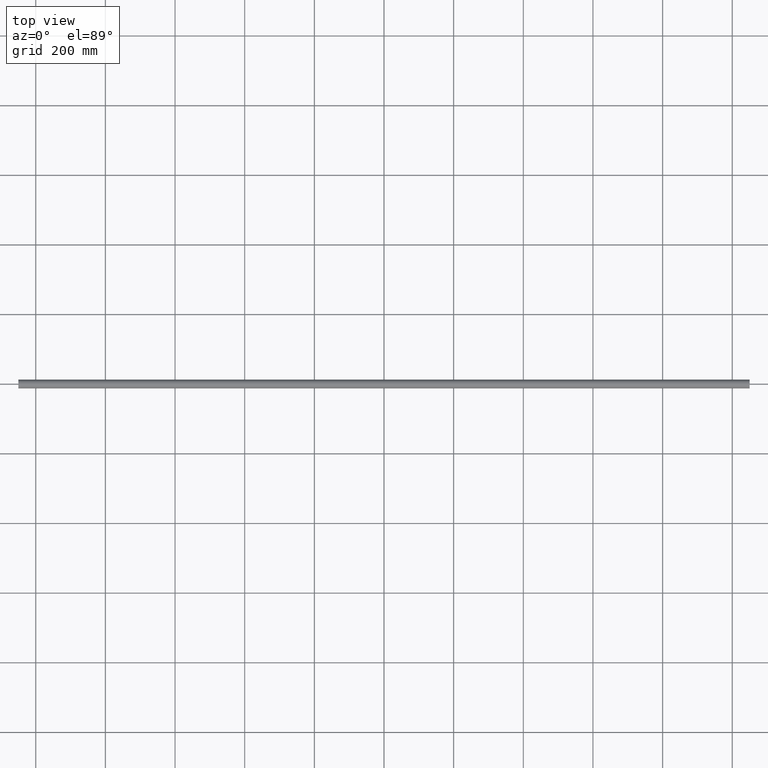
[diagram: clean part render]
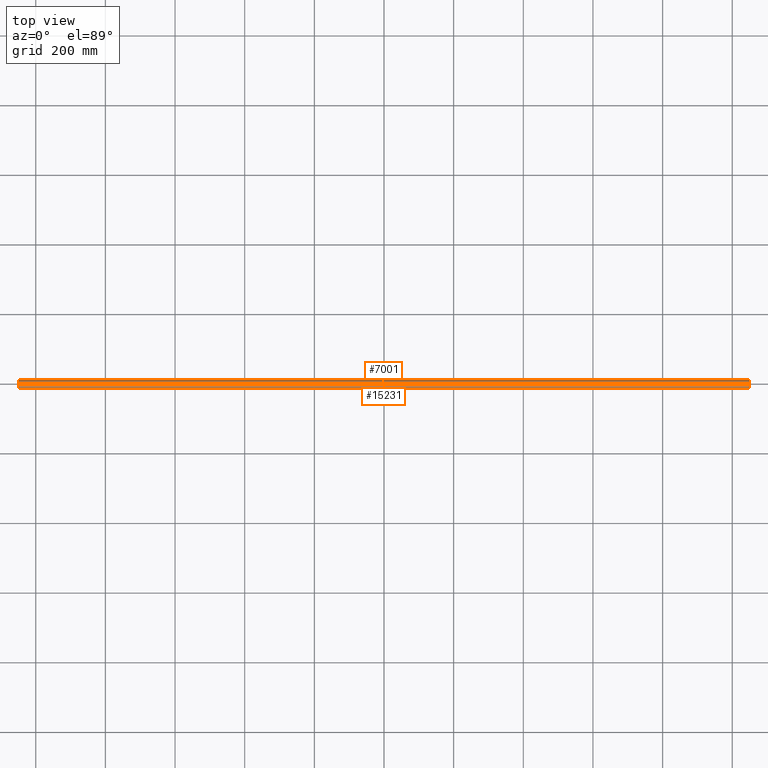
[diagram: same view with one multi-face feature highlighted, each face labeled with its STEP entity id]
A machine part, top view. The highlighted faces form ONE feature: a constant-radius fillet chain: 2 tangent blend faces with common blend radius 12.5 mm. The faces share edges in the B-rep.
Their STEP definitions:
[1] entity #15231 (Cylinder):
#34 = CARTESIAN_POINT ( 'NONE',  ( 1050.000000000000000, 0.0000000000000000000, 12.50000000000000000 ) ) ;
#101 = CARTESIAN_POINT ( 'NONE',  ( -882.5594400543211600, -2.248989797497585200, -12.29704468854005500 ) ) ;
#116 = CARTESIAN_POINT ( 'NONE',  ( 3.399999999999992400, 1.530817148184698900E-015, -12.50000000000000000 ) ) ;
#178 = CARTESIAN_POINT ( 'NONE',  ( 876.6000000000000200, -0.2257922536966988400, -12.50000000000000000 ) ) ;
#238 = CARTESIAN_POINT ( 'NONE',  ( 881.7169160836190300, -2.968529363370429100, -12.14369076542070200 ) ) ;
#287 = CARTESIAN_POINT ( 'NONE',  ( 882.0904125409246000, -2.718083123427828900, -12.20511272832640700 ) ) ;
#327 = ORIENTED_EDGE ( 'NONE', *, *, #12410, .T. ) ;
#335 = CARTESIAN_POINT ( 'NONE',  ( 877.0508764755737700, -1.706430297025199700, -12.38438124661081300 ) ) ;
#649 = ORIENTED_EDGE ( 'NONE', *, *, #9983, .T. ) ;
#767 = ORIENTED_EDGE ( 'NONE', *, *, #7439, .F. ) ;
#923 = CARTESIAN_POINT ( 'NONE',  ( -883.0536700109803400, -1.511526726006549000, -12.40999792042050500 ) ) ;
#1092 = CARTESIAN_POINT ( 'NONE',  ( -3.290681121150606200, -0.8836557597777408000, -12.47063843226399100 ) ) ;
#1206 = CARTESIAN_POINT ( 'NONE',  ( -3.377732997452065800, -0.4476042234037471700, -12.49389134214153300 ) ) ;
#1293 = CARTESIAN_POINT ( 'NONE',  ( 1050.000000000000000, 1.530808498934191500E-015, -12.50000000000000000 ) ) ;
#1363 = CARTESIAN_POINT ( 'NONE',  ( 2.562011329120410100, -2.246229744202106200, -12.29756642919713400 ) ) ;
#1376 = CARTESIAN_POINT ( 'NONE',  ( 876.6222670025480300, -0.4476042234037525000, -12.49389134214153400 ) ) ;
#1421 = CARTESIAN_POINT ( 'NONE',  ( 883.4000000000003200, -0.2225510969395918800, -12.50000000000000400 ) ) ;
#1471 = CARTESIAN_POINT ( 'NONE',  ( 876.6000000000000200, 1.240253457150525300E-014, -12.50000000000000000 ) ) ;
#1550 = CARTESIAN_POINT ( 'NONE',  ( -876.6000000000003600, -0.2225510969395918800, -12.50000000000000400 ) ) ;
#1759 = CARTESIAN_POINT ( 'NONE',  ( -877.4379886708796900, -2.246229744202055100, -12.29756642919714700 ) ) ;
#1930 = CARTESIAN_POINT ( 'NONE',  ( -883.3777329974522000, -0.4476042234037525000, -12.49389134214153400 ) ) ;
#2322 = CARTESIAN_POINT ( 'NONE',  ( -1050.000000000000000, 0.0000000000000000000, 0.0000000000000000000 ) ) ;
#2341 = ORIENTED_EDGE ( 'NONE', *, *, #11870, .T. ) ;
#2469 = CARTESIAN_POINT ( 'NONE',  ( 1050.000000000000000, 1.530808498934191500E-015, -12.50000000000000000 ) ) ;
#2550 = VERTEX_POINT ( 'NONE', #13481 ) ;
#2588 = CARTESIAN_POINT ( 'NONE',  ( 880.2214708092436700, -3.400096623084107900, -12.02868833097945100 ) ) ;
#2609 = CARTESIAN_POINT ( 'NONE',  ( -881.5092891430321100, -3.054671048340733600, -12.12133177702797600 ) ) ;
#3134 = CARTESIAN_POINT ( 'NONE',  ( -883.2906811211505600, -0.8836557597777396900, -12.47063843226399100 ) ) ;
#3151 = LINE ( 'NONE', #34, #8893 ) ;
#3343 = CARTESIAN_POINT ( 'NONE',  ( 1050.000000000000000, 1.530808498934191500E-015, -12.50000000000000000 ) ) ;
#3511 = CARTESIAN_POINT ( 'NONE',  ( -883.3999999999999800, 1.240253457150525300E-014, -12.50000000000000000 ) ) ;
#3524 = DIRECTION ( 'NONE',  ( 0.0000000000000000000, 0.0000000000000000000, -1.000000000000000000 ) ) ;
#3560 = CARTESIAN_POINT ( 'NONE',  ( 1050.000000000000000, 1.530808498934191500E-015, -12.50000000000000000 ) ) ;
#3657 = CARTESIAN_POINT ( 'NONE',  ( 876.6000000000000200, 1.240253457150525300E-014, -12.50000000000000000 ) ) ;
#3793 = CARTESIAN_POINT ( 'NONE',  ( 877.9232214464242400, -2.701278004671885800, -12.20530089315861700 ) ) ;
#3801 = ORIENTED_EDGE ( 'NONE', *, *, #11406, .T. ) ;
#3812 = DIRECTION ( 'NONE',  ( -1.000000000000000000, -0.0000000000000000000, -0.0000000000000000000 ) ) ;
#3845 = CARTESIAN_POINT ( 'NONE',  ( 879.1148156455342400, -3.290386587176775000, -12.05924650855003800 ) ) ;
#3897 = CARTESIAN_POINT ( 'NONE',  ( 880.8849586188829300, -3.290362799234757900, -12.05925230465093800 ) ) ;
#3913 = CARTESIAN_POINT ( 'NONE',  ( -880.4457652610848300, -3.378089484675303100, -12.03497327294810600 ) ) ;
#4066 = CARTESIAN_POINT ( 'NONE',  ( -880.2244276377460900, -3.399902734060280500, -12.02874313505274300 ) ) ;
#4125 = VECTOR ( 'NONE', #12533, 1000.000000000000000 ) ;
#4302 = LINE ( 'NONE', #3343, #7087 ) ;
#4330 = CARTESIAN_POINT ( 'NONE',  ( -883.2247705063503000, -1.100213052444112500, -12.45320411249671000 ) ) ;
#4564 = CARTESIAN_POINT ( 'NONE',  ( 0.2214708092432787200, -3.400096623084137600, -12.02868833097944000 ) ) ;
#4702 = VERTEX_POINT ( 'NONE', #8084 ) ;
#4716 = CARTESIAN_POINT ( 'NONE',  ( -0.8851843544657870300, -3.290386587176843000, -12.05924650855002200 ) ) ;
#4865 = CARTESIAN_POINT ( 'NONE',  ( 2.090412540924484000, -2.718083123427878200, -12.20511272832639600 ) ) ;
#4989 = CARTESIAN_POINT ( 'NONE',  ( 882.5620113291205400, -2.246229744202055100, -12.29756642919714700 ) ) ;
#5038 = CARTESIAN_POINT ( 'NONE',  ( 878.8993935230678300, -3.224536294380859800, -12.07725403179795100 ) ) ;
#5101 = CARTESIAN_POINT ( 'NONE',  ( 876.7752294936501600, -1.100213052444112500, -12.45320411249671000 ) ) ;
#5126 = DIRECTION ( 'NONE',  ( 1.000000000000000000, 0.0000000000000000000, 0.0000000000000000000 ) ) ;
#5265 = CARTESIAN_POINT ( 'NONE',  ( -878.9025609335545800, -3.225774224939495800, -12.07692960344454400 ) ) ;
#5364 = CARTESIAN_POINT ( 'NONE',  ( -876.7100539408758100, -0.8867016201782437200, -12.47044329820943200 ) ) ;
#5742 = CARTESIAN_POINT ( 'NONE',  ( 0.8849586188828737500, -3.290362799234787700, -12.05925230465092600 ) ) ;
#5834 = CYLINDRICAL_SURFACE ( 'NONE', #11644, 12.50000000000000000 ) ;
#5903 = CARTESIAN_POINT ( 'NONE',  ( -0.2244276377459091800, -3.399902734060317000, -12.02874313505273600 ) ) ;
#6162 = CIRCLE ( 'NONE', #14709, 12.50000000000000000 ) ;
#6209 = CARTESIAN_POINT ( 'NONE',  ( 3.377728582763545300, -0.4482571319650705500, -12.49388896063694400 ) ) ;
#6222 = B_SPLINE_CURVE_WITH_KNOTS ( 'NONE', 3,
 ( #11858, #14160, #1206, #1092, #15247, #8123, #8228, #15456, #8329, #10455, #9419, #10616, #11806, #11651, #4716, #13005, #5903, #4564, #12846, #5742, #14057, #6937, #4865, #1363, #13114, #14523, #12050, #14469, #10826, #6209, #14414, #116 ),
 .UNSPECIFIED., .F., .F.,
 ( 4, 2, 2, 2, 2, 2, 2, 2, 2, 2, 2, 2, 2, 2, 2, 4 ),
 ( 1.010852188292129100E-019, 0.0006675304755107761000, 0.001335060951021552000, 0.002002591426532328300, 0.002670121902043104000, 0.003337652377553880100, 0.004005182853064656600, 0.004672713328575432700, 0.005340243804086207900, 0.006007774279596984000, 0.006675304755107760100, 0.008010365706129314900, 0.008677896181640089300, 0.009345426657150865400, 0.01001295713266164000, 0.01068048760817241400 ),
 .UNSPECIFIED. ) ;
#6242 = DIRECTION ( 'NONE',  ( 0.0000000000000000000, 0.0000000000000000000, 1.000000000000000000 ) ) ;
#6295 = CARTESIAN_POINT ( 'NONE',  ( 1050.000000000000000, 0.0000000000000000000, 0.0000000000000000000 ) ) ;
#6502 = EDGE_CURVE ( 'NONE', #13453, #12473, #6222, .T. ) ;
#6694 = CIRCLE ( 'NONE', #10143, 12.50000000000000000 ) ;
#6820 = CARTESIAN_POINT ( 'NONE',  ( -882.9491235244266800, -1.706430297025199700, -12.38438124661081300 ) ) ;
#6913 = ORIENTED_EDGE ( 'NONE', *, *, #7373, .F. ) ;
#6937 = CARTESIAN_POINT ( 'NONE',  ( 1.716916083618988300, -2.968529363370419700, -12.14369076542070900 ) ) ;
#6938 = FACE_OUTER_BOUND ( 'NONE', #10289, .T. ) ;
#7087 = VECTOR ( 'NONE', #14088, 1000.000000000000000 ) ;
#7311 = VECTOR ( 'NONE', #14528, 1000.000000000000000 ) ;
#7363 = CARTESIAN_POINT ( 'NONE',  ( 877.4405599456794100, -2.248989797497585200, -12.29704468854005500 ) ) ;
#7373 = EDGE_CURVE ( 'NONE', #14161, #2550, #10615, .T. ) ;
#7407 = CARTESIAN_POINT ( 'NONE',  ( 878.2945473595474400, -2.949803944381664600, -12.14763061015493100 ) ) ;
#7439 = EDGE_CURVE ( 'NONE', #9248, #7793, #4302, .T. ) ;
#7462 = CARTESIAN_POINT ( 'NONE',  ( 883.2252202028613500, -1.098761744103554900, -12.45332302889326900 ) ) ;
#7533 = CARTESIAN_POINT ( 'NONE',  ( -879.7785291907567900, -3.400096623084107900, -12.02868833097945100 ) ) ;
#7552 = ORIENTED_EDGE ( 'NONE', *, *, #6502, .T. ) ;
#7631 = CARTESIAN_POINT ( 'NONE',  ( -876.6222714172364500, -0.4482571319650465700, -12.49388896063693900 ) ) ;
#7688 = CARTESIAN_POINT ( 'NONE',  ( -877.2980682231444700, -2.075686207071267800, -12.32785800513538800 ) ) ;
#7793 = VERTEX_POINT ( 'NONE', #15151 ) ;
#8084 = CARTESIAN_POINT ( 'NONE',  ( 1050.000000000000000, 0.0000000000000000000, 12.50000000000000000 ) ) ;
#8123 = CARTESIAN_POINT ( 'NONE',  ( -3.053670010980493300, -1.511526726006569500, -12.40999792042050100 ) ) ;
#8209 = LINE ( 'NONE', #1293, #13790 ) ;
#8228 = CARTESIAN_POINT ( 'NONE',  ( -2.949123524426438900, -1.706430297025205400, -12.38438124661080900 ) ) ;
#8267 = CARTESIAN_POINT ( 'NONE',  ( -882.0767785535756500, -2.701278004671885800, -12.20530089315861700 ) ) ;
#8311 = CARTESIAN_POINT ( 'NONE',  ( -882.2472831817788100, -2.560938656392413000, -12.23588396395595300 ) ) ;
#8329 = CARTESIAN_POINT ( 'NONE',  ( -2.559440054320829500, -2.248989797497627000, -12.29704468854004600 ) ) ;
#8508 = CARTESIAN_POINT ( 'NONE',  ( 879.5542347389150600, -3.378089484675303100, -12.03497327294810600 ) ) ;
#8555 = CARTESIAN_POINT ( 'NONE',  ( 876.9463299890196600, -1.511526726006549000, -12.40999792042050500 ) ) ;
#8611 = CARTESIAN_POINT ( 'NONE',  ( 882.7019317768554200, -2.075686207071267800, -12.32785800513538800 ) ) ;
#8657 = CARTESIAN_POINT ( 'NONE',  ( 883.3999999999999800, 1.530817147818667500E-015, -12.50000000000000000 ) ) ;
#8819 = CARTESIAN_POINT ( 'NONE',  ( -879.5519930857736900, -3.377710602246517100, -12.03507891894724400 ) ) ;
#8893 = VECTOR ( 'NONE', #12987, 1000.000000000000000 ) ;
#9189 = EDGE_CURVE ( 'NONE', #13453, #14059, #8209, .T. ) ;
#9248 = VERTEX_POINT ( 'NONE', #3560 ) ;
#9334 = CARTESIAN_POINT ( 'NONE',  ( -883.3999999999999800, 1.240253457150525300E-014, -12.50000000000000000 ) ) ;
#9419 = CARTESIAN_POINT ( 'NONE',  ( -2.076778553575694600, -2.701278004671927600, -12.20530089315860600 ) ) ;
#9689 = CARTESIAN_POINT ( 'NONE',  ( 879.7755723622539100, -3.399902734060280500, -12.02874313505274300 ) ) ;
#9713 = CARTESIAN_POINT ( 'NONE',  ( -881.7054526404529000, -2.949803944381664600, -12.14763061015493100 ) ) ;
#9749 = CARTESIAN_POINT ( 'NONE',  ( 883.0548833401692300, -1.508976641703934500, -12.41029900232306300 ) ) ;
#9906 = ORIENTED_EDGE ( 'NONE', *, *, #13343, .F. ) ;
#9983 = EDGE_CURVE ( 'NONE', #12107, #2550, #6162, .T. ) ;
#10066 = CARTESIAN_POINT ( 'NONE',  ( -876.6000000000000200, 1.530817147818667500E-015, -12.50000000000000000 ) ) ;
#10143 = AXIS2_PLACEMENT_3D ( 'NONE', #6295, #5126, #13419 ) ;
#10224 = CARTESIAN_POINT ( 'NONE',  ( 1050.000000000000000, 1.530808498934191500E-015, -12.50000000000000000 ) ) ;
#10289 = EDGE_LOOP ( 'NONE', ( #767, #9906, #327, #649, #6913, #3801, #14481, #7552, #14497, #2341 ) ) ;
#10292 = CARTESIAN_POINT ( 'NONE',  ( 3.399999999999992400, 1.530817148184698900E-015, -12.50000000000000000 ) ) ;
#10455 = CARTESIAN_POINT ( 'NONE',  ( -2.247283181778619600, -2.560938656392455700, -12.23588396395593800 ) ) ;
#10615 = LINE ( 'NONE', #10224, #4125 ) ;
#10616 = CARTESIAN_POINT ( 'NONE',  ( -1.705452640452512500, -2.949803944381704600, -12.14763061015491600 ) ) ;
#10826 = CARTESIAN_POINT ( 'NONE',  ( 3.289946059124467600, -0.8867016201782704800, -12.47044329820943000 ) ) ;
#10865 = CARTESIAN_POINT ( 'NONE',  ( 1050.000000000000000, 0.0000000000000000000, 0.0000000000000000000 ) ) ;
#10902 = CARTESIAN_POINT ( 'NONE',  ( 883.3777285827635500, -0.4482571319650465700, -12.49388896063693900 ) ) ;
#10927 = CARTESIAN_POINT ( 'NONE',  ( -881.1006064769325100, -3.224536294380859800, -12.07725403179795100 ) ) ;
#11007 = CARTESIAN_POINT ( 'NONE',  ( 878.4907108569678900, -3.054671048340733600, -12.12133177702797600 ) ) ;
#11079 = VERTEX_POINT ( 'NONE', #3657 ) ;
#11265 = CARTESIAN_POINT ( 'NONE',  ( -876.7747797971384200, -1.098761744103554900, -12.45332302889326900 ) ) ;
#11406 = EDGE_CURVE ( 'NONE', #14161, #14059, #13647, .T. ) ;
#11523 = CARTESIAN_POINT ( 'NONE',  ( -882.7023275773589100, -2.075249282755359000, -12.32794158140094400 ) ) ;
#11644 = AXIS2_PLACEMENT_3D ( 'NONE', #10865, #3812, #6242 ) ;
#11651 = CARTESIAN_POINT ( 'NONE',  ( -1.100606476932582700, -3.224536294380884200, -12.07725403179794400 ) ) ;
#11702 = DIRECTION ( 'NONE',  ( 1.000000000000000000, 0.0000000000000000000, 0.0000000000000000000 ) ) ;
#11806 = CARTESIAN_POINT ( 'NONE',  ( -1.509289143032031400, -3.054671048340752200, -12.12133177702796700 ) ) ;
#11858 = CARTESIAN_POINT ( 'NONE',  ( -3.399999999999992400, -2.744008533087695100E-017, -12.50000000000000000 ) ) ;
#11870 = EDGE_CURVE ( 'NONE', #11079, #7793, #15260, .T. ) ;
#12045 = DIRECTION ( 'NONE',  ( -1.000000000000000000, -0.0000000000000000000, -0.0000000000000000000 ) ) ;
#12050 = CARTESIAN_POINT ( 'NONE',  ( 3.054883340169163700, -1.508976641703948500, -12.41029900232305900 ) ) ;
#12071 = CARTESIAN_POINT ( 'NONE',  ( 881.0974390664457600, -3.225774224939495800, -12.07692960344454400 ) ) ;
#12107 = VERTEX_POINT ( 'NONE', #14668 ) ;
#12136 = CARTESIAN_POINT ( 'NONE',  ( 880.4480069142264300, -3.377710602246517100, -12.03507891894724400 ) ) ;
#12190 = CARTESIAN_POINT ( 'NONE',  ( 883.2899460591245300, -0.8867016201782437200, -12.47044329820943200 ) ) ;
#12367 = CARTESIAN_POINT ( 'NONE',  ( -879.1150413811172900, -3.290362799234757900, -12.05925230465093800 ) ) ;
#12410 = EDGE_CURVE ( 'NONE', #4702, #12107, #3151, .T. ) ;
#12463 = CARTESIAN_POINT ( 'NONE',  ( -877.0519466653321400, -1.708183272649670800, -12.38412960736629000 ) ) ;
#12473 = VERTEX_POINT ( 'NONE', #10292 ) ;
#12533 = DIRECTION ( 'NONE',  ( -1.000000000000000000, -0.0000000000000000000, -0.0000000000000000000 ) ) ;
#12665 = CARTESIAN_POINT ( 'NONE',  ( -883.3999999999999800, -0.2257922536966988400, -12.50000000000000000 ) ) ;
#12846 = CARTESIAN_POINT ( 'NONE',  ( 0.4480069142262588200, -3.377710602246548200, -12.03507891894723200 ) ) ;
#12987 = DIRECTION ( 'NONE',  ( -1.000000000000000000, -0.0000000000000000000, -0.0000000000000000000 ) ) ;
#13005 = CARTESIAN_POINT ( 'NONE',  ( -0.4457652610848885600, -3.378089484675354600, -12.03497327294809200 ) ) ;
#13114 = CARTESIAN_POINT ( 'NONE',  ( 2.701931776855453800, -2.075686207071248300, -12.32785800513539200 ) ) ;
#13290 = CARTESIAN_POINT ( 'NONE',  ( 882.9480533346678600, -1.708183272649670800, -12.38412960736629000 ) ) ;
#13312 = CARTESIAN_POINT ( 'NONE',  ( -880.8851843544661100, -3.290386587176775000, -12.05924650855003800 ) ) ;
#13341 = CARTESIAN_POINT ( 'NONE',  ( 877.2976724226412000, -2.075249282755359000, -12.32794158140094400 ) ) ;
#13343 = EDGE_CURVE ( 'NONE', #4702, #9248, #6694, .T. ) ;
#13419 = DIRECTION ( 'NONE',  ( 0.0000000000000000000, 0.0000000000000000000, -1.000000000000000000 ) ) ;
#13453 = VERTEX_POINT ( 'NONE', #14770 ) ;
#13481 = CARTESIAN_POINT ( 'NONE',  ( -1050.000000000000000, 1.530808498934191500E-015, -12.50000000000000000 ) ) ;
#13561 = CARTESIAN_POINT ( 'NONE',  ( -877.9095874590754000, -2.718083123427828900, -12.20511272832640700 ) ) ;
#13637 = CARTESIAN_POINT ( 'NONE',  ( -876.6000000000000200, 1.530817147818667500E-015, -12.50000000000000000 ) ) ;
#13647 = B_SPLINE_CURVE_WITH_KNOTS ( 'NONE', 3,
 ( #9334, #12665, #1930, #3134, #4330, #923, #6820, #11523, #101, #8311, #8267, #9713, #2609, #10927, #13312, #3913, #4066, #7533, #8819, #12367, #5265, #14859, #13561, #1759, #7688, #12463, #14769, #11265, #5364, #7631, #1550, #10066 ),
 .UNSPECIFIED., .F., .F.,
 ( 4, 2, 2, 2, 2, 2, 2, 2, 2, 2, 2, 2, 2, 2, 2, 4 ),
 ( 1.197015388918840900E-017, 0.0006675304755108357300, 0.001335060951021659500, 0.002002591426532483600, 0.002670121902043307400, 0.003337652377554131200, 0.004005182853064955000, 0.004672713328575778800, 0.005340243804086602600, 0.006007774279597426400, 0.006675304755108250200, 0.008010365706129594200, 0.008677896181640266200, 0.009345426657150938300, 0.01001295713266161000, 0.01068048760817228200 ),
 .UNSPECIFIED. ) ;
#13790 = VECTOR ( 'NONE', #12045, 1000.000000000000000 ) ;
#14008 = LINE ( 'NONE', #2469, #7311 ) ;
#14057 = CARTESIAN_POINT ( 'NONE',  ( 1.097439066445788900, -3.225774224939502500, -12.07692960344454200 ) ) ;
#14059 = VERTEX_POINT ( 'NONE', #13637 ) ;
#14088 = DIRECTION ( 'NONE',  ( -1.000000000000000000, -0.0000000000000000000, -0.0000000000000000000 ) ) ;
#14160 = CARTESIAN_POINT ( 'NONE',  ( -3.399999999999991900, -0.2257922536967014400, -12.50000000000000000 ) ) ;
#14161 = VERTEX_POINT ( 'NONE', #3511 ) ;
#14414 = CARTESIAN_POINT ( 'NONE',  ( 3.399999999999991900, -0.2225510969395931600, -12.49999999999999600 ) ) ;
#14469 = CARTESIAN_POINT ( 'NONE',  ( 3.225220202861461600, -1.098761744103564400, -12.45332302889326600 ) ) ;
#14481 = ORIENTED_EDGE ( 'NONE', *, *, #9189, .F. ) ;
#14483 = CARTESIAN_POINT ( 'NONE',  ( 876.7093188788492200, -0.8836557597777396900, -12.47063843226399100 ) ) ;
#14497 = ORIENTED_EDGE ( 'NONE', *, *, #15063, .F. ) ;
#14523 = CARTESIAN_POINT ( 'NONE',  ( 2.948053334667987400, -1.708183272649644400, -12.38412960736629600 ) ) ;
#14528 = DIRECTION ( 'NONE',  ( -1.000000000000000000, -0.0000000000000000000, -0.0000000000000000000 ) ) ;
#14598 = CARTESIAN_POINT ( 'NONE',  ( 877.7527168182213000, -2.560938656392413000, -12.23588396395595300 ) ) ;
#14668 = CARTESIAN_POINT ( 'NONE',  ( -1050.000000000000000, 0.0000000000000000000, 12.50000000000000000 ) ) ;
#14709 = AXIS2_PLACEMENT_3D ( 'NONE', #2322, #11702, #3524 ) ;
#14769 = CARTESIAN_POINT ( 'NONE',  ( -876.9451166598306600, -1.508976641703934500, -12.41029900232306300 ) ) ;
#14770 = CARTESIAN_POINT ( 'NONE',  ( -3.399999999999992400, -2.744008533087695100E-017, -12.50000000000000000 ) ) ;
#14859 = CARTESIAN_POINT ( 'NONE',  ( -878.2830839163812000, -2.968529363370429100, -12.14369076542070200 ) ) ;
#15063 = EDGE_CURVE ( 'NONE', #11079, #12473, #14008, .T. ) ;
#15151 = CARTESIAN_POINT ( 'NONE',  ( 883.3999999999999800, 1.530817147818667500E-015, -12.50000000000000000 ) ) ;
#15231 = ADVANCED_FACE ( 'NONE', ( #6938 ), #5834, .T. ) ;
#15247 = CARTESIAN_POINT ( 'NONE',  ( -3.224770506350074700, -1.100213052444125400, -12.45320411249670300 ) ) ;
#15260 = B_SPLINE_CURVE_WITH_KNOTS ( 'NONE', 3,
 ( #1471, #178, #1376, #14483, #5101, #8555, #335, #13341, #7363, #14598, #3793, #7407, #11007, #5038, #3845, #8508, #9689, #2588, #12136, #3897, #12071, #238, #287, #4989, #8611, #13290, #9749, #7462, #12190, #10902, #1421, #8657 ),
 .UNSPECIFIED., .F., .F.,
 ( 4, 2, 2, 2, 2, 2, 2, 2, 2, 2, 2, 2, 2, 2, 2, 4 ),
 ( 1.197015388918840900E-017, 0.0006675304755108357300, 0.001335060951021659500, 0.002002591426532483600, 0.002670121902043307400, 0.003337652377554131200, 0.004005182853064955000, 0.004672713328575778800, 0.005340243804086602600, 0.006007774279597426400, 0.006675304755108250200, 0.008010365706129594200, 0.008677896181640266200, 0.009345426657150938300, 0.01001295713266161000, 0.01068048760817228200 ),
 .UNSPECIFIED. ) ;
#15456 = CARTESIAN_POINT ( 'NONE',  ( -2.702327577358870400, -2.075249282755371900, -12.32794158140094100 ) ) ;
[2] entity #7001 (Cylinder):
#34 = CARTESIAN_POINT ( 'NONE',  ( 1050.000000000000000, 0.0000000000000000000, 12.50000000000000000 ) ) ;
#95 = CARTESIAN_POINT ( 'NONE',  ( -1.508849422108631300, 3.054930781526017800, -12.12126751630187400 ) ) ;
#229 = B_SPLINE_CURVE_WITH_KNOTS ( 'NONE', 3,
 ( #9951, #8551, #2643, #12132, #12440, #11386, #7606, #13696, #4288, #2888, #14738, #1789, #5342, #8938, #4081, #6464, #14796, #11246, #4194, #13741, #11190, #7660, #6620, #479, #10147, #1829, #6575, #8886, #7809, #8798, #13648, #10096, #14885, #7710 ),
 .UNSPECIFIED., .F., .F.,
 ( 4, 2, 2, 2, 2, 2, 2, 2, 2, 2, 2, 2, 2, 2, 2, 2, 4 ),
 ( 0.01068048760817228200, 0.01134783680047156600, 0.01201518599277084900, 0.01268253518507013100, 0.01334988437736941500, 0.01401723356966869800, 0.01468458276196798000, 0.01535193195426726300, 0.01601928114656654700, 0.01668663033886583200, 0.01735397953116511400, 0.01802132872346439600, 0.01868867791576368100, 0.01935602710806296300, 0.02002337630036224400, 0.02069072549266153000, 0.02135807468496081100 ),
 .UNSPECIFIED. ) ;
#479 = CARTESIAN_POINT ( 'NONE',  ( -882.0752257788897200, 2.702454775431625000, -12.20503821577511700 ) ) ;
#577 = AXIS2_PLACEMENT_3D ( 'NONE', #5572, #12736, #6821 ) ;
#636 = ORIENTED_EDGE ( 'NONE', *, *, #15063, .T. ) ;
#723 = CIRCLE ( 'NONE', #13345, 12.50000000000000000 ) ;
#889 = CARTESIAN_POINT ( 'NONE',  ( 877.4410707372538800, 2.249555390736871300, -12.29693940646135500 ) ) ;
#952 = CARTESIAN_POINT ( 'NONE',  ( 881.5128177256830200, 3.053142613515797500, -12.12172586120244800 ) ) ;
#1280 = CARTESIAN_POINT ( 'NONE',  ( -2.948822403490609200, 1.707024174918691400, -12.38430592481708800 ) ) ;
#1293 = CARTESIAN_POINT ( 'NONE',  ( 1050.000000000000000, 1.530808498934191500E-015, -12.50000000000000000 ) ) ;
#1415 = EDGE_CURVE ( 'NONE', #7793, #11079, #10127, .T. ) ;
#1533 = ORIENTED_EDGE ( 'NONE', *, *, #14073, .T. ) ;
#1789 = CARTESIAN_POINT ( 'NONE',  ( -878.2923021001538500, 2.948301563049304400, -12.14797926367844400 ) ) ;
#1829 = CARTESIAN_POINT ( 'NONE',  ( -882.5589292627462300, 2.249555390736871300, -12.29693940646135500 ) ) ;
#1952 = CARTESIAN_POINT ( 'NONE',  ( 883.3999999999999800, 1.530817147818667500E-015, -12.50000000000000000 ) ) ;
#2111 = CARTESIAN_POINT ( 'NONE',  ( 876.9467577992728600, 1.512253423253397500, -12.40989427573226300 ) ) ;
#2269 = CARTESIAN_POINT ( 'NONE',  ( 882.7015969138046800, 2.076183846916757900, -12.32778155075019700 ) ) ;
#2296 = CARTESIAN_POINT ( 'NONE',  ( 3.290102908206406600, 0.8865257729732284300, -12.47048403254627900 ) ) ;
#2343 = CARTESIAN_POINT ( 'NONE',  ( 3.399999999999992400, 1.530817148184698900E-015, -12.50000000000000000 ) ) ;
#2390 = CARTESIAN_POINT ( 'NONE',  ( 3.378280758540317000, 0.4448867375077689100, -12.49403760771221700 ) ) ;
#2469 = CARTESIAN_POINT ( 'NONE',  ( 1050.000000000000000, 1.530808498934191500E-015, -12.50000000000000000 ) ) ;
#2550 = VERTEX_POINT ( 'NONE', #13481 ) ;
#2643 = CARTESIAN_POINT ( 'NONE',  ( -876.6217192414598000, 0.4448867375077629700, -12.49403760771221900 ) ) ;
#2888 = CARTESIAN_POINT ( 'NONE',  ( -877.7518609685738500, 2.560279434377374500, -12.23603317420604600 ) ) ;
#2927 = ORIENTED_EDGE ( 'NONE', *, *, #7439, .T. ) ;
#2994 = DIRECTION ( 'NONE',  ( -1.000000000000000000, -0.0000000000000000000, -0.0000000000000000000 ) ) ;
#3151 = LINE ( 'NONE', #34, #8893 ) ;
#3269 = EDGE_CURVE ( 'NONE', #14059, #14161, #229, .T. ) ;
#3343 = CARTESIAN_POINT ( 'NONE',  ( 1050.000000000000000, 1.530808498934191500E-015, -12.50000000000000000 ) ) ;
#3373 = CARTESIAN_POINT ( 'NONE',  ( 879.1179449852575100, 3.291149578720000200, -12.05903691066762600 ) ) ;
#3450 = CARTESIAN_POINT ( 'NONE',  ( -3.223838328143052000, 1.102753275414793700, -12.45296436855722900 ) ) ;
#3483 = CARTESIAN_POINT ( 'NONE',  ( 882.5616062947974600, 2.246627044520512300, -12.29748777373637700 ) ) ;
#3511 = CARTESIAN_POINT ( 'NONE',  ( -883.3999999999999800, 1.240253457150525300E-014, -12.50000000000000000 ) ) ;
#3525 = CARTESIAN_POINT ( 'NONE',  ( 879.5551853612124700, 3.378139508022326000, -12.03495784066947700 ) ) ;
#3560 = CARTESIAN_POINT ( 'NONE',  ( 1050.000000000000000, 1.530808498934191500E-015, -12.50000000000000000 ) ) ;
#3575 = CARTESIAN_POINT ( 'NONE',  ( 1050.000000000000000, 0.0000000000000000000, 0.0000000000000000000 ) ) ;
#3652 = CARTESIAN_POINT ( 'NONE',  ( -2.075225778890010400, 2.702454775431600600, -12.20503821577512400 ) ) ;
#3657 = CARTESIAN_POINT ( 'NONE',  ( 876.6000000000000200, 1.240253457150525300E-014, -12.50000000000000000 ) ) ;
#3769 = ORIENTED_EDGE ( 'NONE', *, *, #3269, .T. ) ;
#4081 = CARTESIAN_POINT ( 'NONE',  ( -879.1146337435511700, 3.290199395220138700, -12.05929658612623900 ) ) ;
#4125 = VECTOR ( 'NONE', #12533, 1000.000000000000000 ) ;
#4194 = CARTESIAN_POINT ( 'NONE',  ( -880.4448146387877600, 3.378139508022326000, -12.03495784066947700 ) ) ;
#4288 = CARTESIAN_POINT ( 'NONE',  ( -877.4383937052026600, 2.246627044520512300, -12.29748777373637700 ) ) ;
#4302 = LINE ( 'NONE', #3343, #7087 ) ;
#4517 = B_SPLINE_CURVE_WITH_KNOTS ( 'NONE', 3,
 ( #2343, #14283, #2390, #2296, #10749, #10659, #7217, #15435, #12988, #13142, #7019, #4796, #11836, #4751, #13097, #13044, #5930, #4845, #8308, #5977, #7173, #95, #9553, #3652, #6029, #14339, #8417, #1280, #10547, #3450, #11729, #4641, #12941, #5840 ),
 .UNSPECIFIED., .F., .F.,
 ( 4, 2, 2, 2, 2, 2, 2, 2, 2, 2, 2, 2, 2, 2, 2, 2, 4 ),
 ( 0.01068048760817241400, 0.01134783680047170500, 0.01201518599277099700, 0.01268253518507028700, 0.01334988437736957900, 0.01401723356966887200, 0.01468458276196816200, 0.01535193195426745400, 0.01601928114656674500, 0.01668663033886603700, 0.01735397953116532600, 0.01802132872346461800, 0.01868867791576391000, 0.01935602710806320200, 0.02002337630036249400, 0.02069072549266178600, 0.02135807468496107900 ),
 .UNSPECIFIED. ) ;
#4571 = CARTESIAN_POINT ( 'NONE',  ( 878.9009702921511000, 3.225114317319322000, -12.07710089060665500 ) ) ;
#4641 = CARTESIAN_POINT ( 'NONE',  ( -3.377737069943546300, 0.4480304431356871300, -12.49389157976499300 ) ) ;
#4702 = VERTEX_POINT ( 'NONE', #8084 ) ;
#4729 = CARTESIAN_POINT ( 'NONE',  ( 883.3999999999999800, 0.2224906580846630300, -12.50000000000000000 ) ) ;
#4751 = CARTESIAN_POINT ( 'NONE',  ( 1.098672814191161700, 3.225401577627999800, -12.07703201683448100 ) ) ;
#4778 = CARTESIAN_POINT ( 'NONE',  ( 876.7098464286036700, 0.8858490098629775400, -12.47049837081998000 ) ) ;
#4796 = CARTESIAN_POINT ( 'NONE',  ( 1.707697899846061000, 2.948301563049320800, -12.14797926367843800 ) ) ;
#4845 = CARTESIAN_POINT ( 'NONE',  ( -0.2234455537290544500, 3.400048205355202600, -12.02870201658427100 ) ) ;
#5342 = CARTESIAN_POINT ( 'NONE',  ( -878.4871822743166400, 3.053142613515797500, -12.12172586120244800 ) ) ;
#5572 = CARTESIAN_POINT ( 'NONE',  ( -1050.000000000000000, 0.0000000000000000000, 0.0000000000000000000 ) ) ;
#5658 = CARTESIAN_POINT ( 'NONE',  ( 877.7530581111725500, 2.561224429050289700, -12.23582231181098500 ) ) ;
#5718 = EDGE_CURVE ( 'NONE', #12473, #13453, #4517, .T. ) ;
#5752 = CARTESIAN_POINT ( 'NONE',  ( 877.2987356385388000, 2.076693513877929200, -12.32770492924915700 ) ) ;
#5804 = ORIENTED_EDGE ( 'NONE', *, *, #1415, .T. ) ;
#5840 = CARTESIAN_POINT ( 'NONE',  ( -3.399999999999992400, -2.744008533087695100E-017, -12.50000000000000000 ) ) ;
#5868 = CARTESIAN_POINT ( 'NONE',  ( 882.0745408627613000, 2.702775320397728700, -12.20495341510524800 ) ) ;
#5930 = CARTESIAN_POINT ( 'NONE',  ( 0.2249101616983705800, 3.399951636918566100, -12.02872931232274700 ) ) ;
#5977 = CARTESIAN_POINT ( 'NONE',  ( -0.8820550147423930100, 3.291149578720029600, -12.05903691066761500 ) ) ;
#6029 = CARTESIAN_POINT ( 'NONE',  ( -2.246941888827491700, 2.561224429050343000, -12.23582231181097400 ) ) ;
#6464 = CARTESIAN_POINT ( 'NONE',  ( -879.5499947649569800, 3.377392597374309100, -12.03516786154909300 ) ) ;
#6575 = CARTESIAN_POINT ( 'NONE',  ( -882.7012643614615400, 2.076693513877929200, -12.32770492924915700 ) ) ;
#6620 = CARTESIAN_POINT ( 'NONE',  ( -881.7041004218791600, 2.950570385327931700, -12.14744228481905900 ) ) ;
#6622 = DIRECTION ( 'NONE',  ( 0.0000000000000000000, 0.0000000000000000000, 1.000000000000000000 ) ) ;
#6750 = FACE_OUTER_BOUND ( 'NONE', #9799, .T. ) ;
#6821 = DIRECTION ( 'NONE',  ( 0.0000000000000000000, 0.0000000000000000000, -1.000000000000000000 ) ) ;
#6838 = CARTESIAN_POINT ( 'NONE',  ( 877.9247742211099400, 2.702454775431625000, -12.20503821577511700 ) ) ;
#7001 = ADVANCED_FACE ( 'NONE', ( #6750 ), #14756, .T. ) ;
#7019 = CARTESIAN_POINT ( 'NONE',  ( 2.074540862761344900, 2.702775320397744700, -12.20495341510524800 ) ) ;
#7042 = CARTESIAN_POINT ( 'NONE',  ( 879.7765544462708900, 3.400048205355171500, -12.02870201658427800 ) ) ;
#7087 = VECTOR ( 'NONE', #14088, 1000.000000000000000 ) ;
#7173 = CARTESIAN_POINT ( 'NONE',  ( -1.099029707848890400, 3.225114317319355700, -12.07710089060664400 ) ) ;
#7217 = CARTESIAN_POINT ( 'NONE',  ( 2.948365695323058100, 1.707719232637260100, -12.38420091696253800 ) ) ;
#7244 = CARTESIAN_POINT ( 'NONE',  ( 876.5999999999999100, 0.2257309346313073600, -12.49999999999999800 ) ) ;
#7311 = VECTOR ( 'NONE', #14528, 1000.000000000000000 ) ;
#7373 = EDGE_CURVE ( 'NONE', #14161, #2550, #10615, .T. ) ;
#7439 = EDGE_CURVE ( 'NONE', #9248, #7793, #4302, .T. ) ;
#7606 = CARTESIAN_POINT ( 'NONE',  ( -877.0516343046767800, 1.707719232637206600, -12.38420091696254300 ) ) ;
#7660 = CARTESIAN_POINT ( 'NONE',  ( -881.5088494221087100, 3.054930781525983600, -12.12126751630187900 ) ) ;
#7710 = CARTESIAN_POINT ( 'NONE',  ( -883.3999999999999800, 1.240253457150525300E-014, -12.50000000000000000 ) ) ;
#7793 = VERTEX_POINT ( 'NONE', #15151 ) ;
#7809 = CARTESIAN_POINT ( 'NONE',  ( -883.0532422007272500, 1.512253423253397500, -12.40989427573226300 ) ) ;
#7865 = CARTESIAN_POINT ( 'NONE',  ( 1050.000000000000000, 0.0000000000000000000, 0.0000000000000000000 ) ) ;
#8084 = CARTESIAN_POINT ( 'NONE',  ( 1050.000000000000000, 0.0000000000000000000, 12.50000000000000000 ) ) ;
#8179 = CARTESIAN_POINT ( 'NONE',  ( 883.3782807585405400, 0.4448867375077629700, -12.49403760771221900 ) ) ;
#8209 = LINE ( 'NONE', #1293, #13790 ) ;
#8241 = CARTESIAN_POINT ( 'NONE',  ( 882.9483656953229900, 1.707719232637206600, -12.38420091696254300 ) ) ;
#8308 = CARTESIAN_POINT ( 'NONE',  ( -0.4448146387875809800, 3.378139508022354000, -12.03495784066946900 ) ) ;
#8417 = CARTESIAN_POINT ( 'NONE',  ( -2.701264361461528800, 2.076693513877967400, -12.32770492924914800 ) ) ;
#8551 = CARTESIAN_POINT ( 'NONE',  ( -876.5999999999999100, 0.2224906580846630300, -12.50000000000000000 ) ) ;
#8798 = CARTESIAN_POINT ( 'NONE',  ( -883.2238383281429600, 1.102753275414778200, -12.45296436855722700 ) ) ;
#8886 = CARTESIAN_POINT ( 'NONE',  ( -882.9488224034904500, 1.707024174918659000, -12.38430592481709500 ) ) ;
#8893 = VECTOR ( 'NONE', #12987, 1000.000000000000000 ) ;
#8938 = CARTESIAN_POINT ( 'NONE',  ( -878.9013271858087800, 3.225401577627969600, -12.07703201683448800 ) ) ;
#9189 = EDGE_CURVE ( 'NONE', #13453, #14059, #8209, .T. ) ;
#9221 = CARTESIAN_POINT ( 'NONE',  ( 883.2250748562822800, 1.099126717669559800, -12.45328610117817200 ) ) ;
#9248 = VERTEX_POINT ( 'NONE', #3560 ) ;
#9265 = CARTESIAN_POINT ( 'NONE',  ( 880.8853662564486100, 3.290199395220138700, -12.05929658612623900 ) ) ;
#9309 = ORIENTED_EDGE ( 'NONE', *, *, #5718, .T. ) ;
#9360 = CIRCLE ( 'NONE', #577, 12.50000000000000000 ) ;
#9375 = CARTESIAN_POINT ( 'NONE',  ( 883.2901029082064500, 0.8865257729732174400, -12.47048403254628500 ) ) ;
#9425 = CARTESIAN_POINT ( 'NONE',  ( 880.4500052350432500, 3.377392597374309100, -12.03516786154909300 ) ) ;
#9474 = ORIENTED_EDGE ( 'NONE', *, *, #9189, .T. ) ;
#9553 = CARTESIAN_POINT ( 'NONE',  ( -1.704100421879116500, 2.950570385327915700, -12.14744228481906600 ) ) ;
#9625 = CARTESIAN_POINT ( 'NONE',  ( 876.6000000000000200, 1.240253457150525300E-014, -12.50000000000000000 ) ) ;
#9799 = EDGE_LOOP ( 'NONE', ( #9837, #2927, #5804, #636, #9309, #9474, #3769, #13995, #1533, #13915 ) ) ;
#9837 = ORIENTED_EDGE ( 'NONE', *, *, #13788, .F. ) ;
#9951 = CARTESIAN_POINT ( 'NONE',  ( -876.6000000000000200, 1.530817147818667500E-015, -12.50000000000000000 ) ) ;
#10096 = CARTESIAN_POINT ( 'NONE',  ( -883.3777370699432400, 0.4480304431356896300, -12.49389157976499500 ) ) ;
#10127 = B_SPLINE_CURVE_WITH_KNOTS ( 'NONE', 3,
 ( #1952, #4729, #8179, #9375, #9221, #11766, #8241, #2269, #3483, #12967, #5868, #14170, #952, #10413, #9265, #9425, #10466, #7042, #3525, #3373, #4571, #12858, #11814, #6838, #5658, #889, #5752, #13949, #2111, #14068, #4778, #13221, #7244, #9625 ),
 .UNSPECIFIED., .F., .F.,
 ( 4, 2, 2, 2, 2, 2, 2, 2, 2, 2, 2, 2, 2, 2, 2, 2, 4 ),
 ( 0.01068048760817228200, 0.01134783680047156600, 0.01201518599277084900, 0.01268253518507013100, 0.01334988437736941500, 0.01401723356966869800, 0.01468458276196798000, 0.01535193195426726300, 0.01601928114656654700, 0.01668663033886583200, 0.01735397953116511400, 0.01802132872346439600, 0.01868867791576368100, 0.01935602710806296300, 0.02002337630036224400, 0.02069072549266153000, 0.02135807468496081100 ),
 .UNSPECIFIED. ) ;
#10147 = CARTESIAN_POINT ( 'NONE',  ( -882.2469418888274500, 2.561224429050289700, -12.23582231181098500 ) ) ;
#10224 = CARTESIAN_POINT ( 'NONE',  ( 1050.000000000000000, 1.530808498934191500E-015, -12.50000000000000000 ) ) ;
#10292 = CARTESIAN_POINT ( 'NONE',  ( 3.399999999999992400, 1.530817148184698900E-015, -12.50000000000000000 ) ) ;
#10413 = CARTESIAN_POINT ( 'NONE',  ( 881.0986728141912200, 3.225401577627969600, -12.07703201683448800 ) ) ;
#10466 = CARTESIAN_POINT ( 'NONE',  ( 880.2249101616982900, 3.399951636918531000, -12.02872931232275500 ) ) ;
#10547 = CARTESIAN_POINT ( 'NONE',  ( -3.053242200727052800, 1.512253423253414800, -12.40989427573226000 ) ) ;
#10615 = LINE ( 'NONE', #10224, #4125 ) ;
#10659 = CARTESIAN_POINT ( 'NONE',  ( 3.054961297361531000, 1.508773953162645400, -12.41031890877710000 ) ) ;
#10749 = CARTESIAN_POINT ( 'NONE',  ( 3.225074856282220500, 1.099126717669581600, -12.45328610117817400 ) ) ;
#11079 = VERTEX_POINT ( 'NONE', #3657 ) ;
#11190 = CARTESIAN_POINT ( 'NONE',  ( -881.0990297078489000, 3.225114317319322000, -12.07710089060665500 ) ) ;
#11246 = CARTESIAN_POINT ( 'NONE',  ( -880.2234455537289900, 3.400048205355171500, -12.02870201658427800 ) ) ;
#11386 = CARTESIAN_POINT ( 'NONE',  ( -876.9450387026382700, 1.508773953162621000, -12.41031890877710200 ) ) ;
#11729 = CARTESIAN_POINT ( 'NONE',  ( -3.290153571396320100, 0.8858490098629764300, -12.47049837081998000 ) ) ;
#11766 = CARTESIAN_POINT ( 'NONE',  ( 883.0549612973613900, 1.508773953162621000, -12.41031890877710200 ) ) ;
#11814 = CARTESIAN_POINT ( 'NONE',  ( 878.2958995781209500, 2.950570385327931700, -12.14744228481905900 ) ) ;
#11836 = CARTESIAN_POINT ( 'NONE',  ( 1.512817725683328400, 3.053142613515825100, -12.12172586120244400 ) ) ;
#11861 = DIRECTION ( 'NONE',  ( 1.000000000000000000, 0.0000000000000000000, 0.0000000000000000000 ) ) ;
#12045 = DIRECTION ( 'NONE',  ( -1.000000000000000000, -0.0000000000000000000, -0.0000000000000000000 ) ) ;
#12107 = VERTEX_POINT ( 'NONE', #14668 ) ;
#12132 = CARTESIAN_POINT ( 'NONE',  ( -876.7098970917935500, 0.8865257729732174400, -12.47048403254628500 ) ) ;
#12410 = EDGE_CURVE ( 'NONE', #4702, #12107, #3151, .T. ) ;
#12440 = CARTESIAN_POINT ( 'NONE',  ( -876.7749251437177200, 1.099126717669559800, -12.45328610117817200 ) ) ;
#12473 = VERTEX_POINT ( 'NONE', #10292 ) ;
#12533 = DIRECTION ( 'NONE',  ( -1.000000000000000000, -0.0000000000000000000, -0.0000000000000000000 ) ) ;
#12736 = DIRECTION ( 'NONE',  ( 1.000000000000000000, 0.0000000000000000000, 0.0000000000000000000 ) ) ;
#12858 = CARTESIAN_POINT ( 'NONE',  ( 878.4911505778912900, 3.054930781525983600, -12.12126751630187900 ) ) ;
#12941 = CARTESIAN_POINT ( 'NONE',  ( -3.399999999999992800, 0.2257309346313102800, -12.50000000000000000 ) ) ;
#12967 = CARTESIAN_POINT ( 'NONE',  ( 882.2481390314258100, 2.560279434377374500, -12.23603317420604600 ) ) ;
#12987 = DIRECTION ( 'NONE',  ( -1.000000000000000000, -0.0000000000000000000, -0.0000000000000000000 ) ) ;
#12988 = CARTESIAN_POINT ( 'NONE',  ( 2.561606294797433400, 2.246627044520570900, -12.29748777373636400 ) ) ;
#13044 = CARTESIAN_POINT ( 'NONE',  ( 0.4500052350430814300, 3.377392597374352200, -12.03516786154908000 ) ) ;
#13097 = CARTESIAN_POINT ( 'NONE',  ( 0.8853662564486788300, 3.290199395220190200, -12.05929658612622500 ) ) ;
#13142 = CARTESIAN_POINT ( 'NONE',  ( 2.248139031426005000, 2.560279434377431300, -12.23603317420603200 ) ) ;
#13221 = CARTESIAN_POINT ( 'NONE',  ( 876.6222629300565400, 0.4480304431356896300, -12.49389157976499500 ) ) ;
#13345 = AXIS2_PLACEMENT_3D ( 'NONE', #3575, #11861, #15318 ) ;
#13453 = VERTEX_POINT ( 'NONE', #14770 ) ;
#13481 = CARTESIAN_POINT ( 'NONE',  ( -1050.000000000000000, 1.530808498934191500E-015, -12.50000000000000000 ) ) ;
#13637 = CARTESIAN_POINT ( 'NONE',  ( -876.6000000000000200, 1.530817147818667500E-015, -12.50000000000000000 ) ) ;
#13648 = CARTESIAN_POINT ( 'NONE',  ( -883.2901535713964400, 0.8858490098629775400, -12.47049837081998000 ) ) ;
#13696 = CARTESIAN_POINT ( 'NONE',  ( -877.2984030861955500, 2.076183846916757900, -12.32778155075019700 ) ) ;
#13741 = CARTESIAN_POINT ( 'NONE',  ( -880.8820550147423800, 3.291149578720000200, -12.05903691066762600 ) ) ;
#13788 = EDGE_CURVE ( 'NONE', #9248, #4702, #723, .T. ) ;
#13790 = VECTOR ( 'NONE', #12045, 1000.000000000000000 ) ;
#13915 = ORIENTED_EDGE ( 'NONE', *, *, #12410, .F. ) ;
#13949 = CARTESIAN_POINT ( 'NONE',  ( 877.0511775965094300, 1.707024174918659000, -12.38430592481709500 ) ) ;
#13995 = ORIENTED_EDGE ( 'NONE', *, *, #7373, .T. ) ;
#14008 = LINE ( 'NONE', #2469, #7311 ) ;
#14059 = VERTEX_POINT ( 'NONE', #13637 ) ;
#14068 = CARTESIAN_POINT ( 'NONE',  ( 876.7761616718569300, 1.102753275414778200, -12.45296436855722700 ) ) ;
#14073 = EDGE_CURVE ( 'NONE', #2550, #12107, #9360, .T. ) ;
#14088 = DIRECTION ( 'NONE',  ( -1.000000000000000000, -0.0000000000000000000, -0.0000000000000000000 ) ) ;
#14161 = VERTEX_POINT ( 'NONE', #3511 ) ;
#14170 = CARTESIAN_POINT ( 'NONE',  ( 881.7076978998462700, 2.948301563049304400, -12.14797926367844400 ) ) ;
#14283 = CARTESIAN_POINT ( 'NONE',  ( 3.399999999999991900, 0.2224906580846645300, -12.50000000000000400 ) ) ;
#14339 = CARTESIAN_POINT ( 'NONE',  ( -2.558929262746111500, 2.249555390736924100, -12.29693940646134800 ) ) ;
#14528 = DIRECTION ( 'NONE',  ( -1.000000000000000000, -0.0000000000000000000, -0.0000000000000000000 ) ) ;
#14668 = CARTESIAN_POINT ( 'NONE',  ( -1050.000000000000000, 0.0000000000000000000, 12.50000000000000000 ) ) ;
#14738 = CARTESIAN_POINT ( 'NONE',  ( -877.9254591372384800, 2.702775320397728700, -12.20495341510524800 ) ) ;
#14756 = CYLINDRICAL_SURFACE ( 'NONE', #14808, 12.50000000000000000 ) ;
#14770 = CARTESIAN_POINT ( 'NONE',  ( -3.399999999999992400, -2.744008533087695100E-017, -12.50000000000000000 ) ) ;
#14796 = CARTESIAN_POINT ( 'NONE',  ( -879.7750898383018200, 3.399951636918531000, -12.02872931232275500 ) ) ;
#14808 = AXIS2_PLACEMENT_3D ( 'NONE', #7865, #2994, #6622 ) ;
#14885 = CARTESIAN_POINT ( 'NONE',  ( -883.3999999999997500, 0.2257309346313073600, -12.49999999999999800 ) ) ;
#15063 = EDGE_CURVE ( 'NONE', #11079, #12473, #14008, .T. ) ;
#15151 = CARTESIAN_POINT ( 'NONE',  ( 883.3999999999999800, 1.530817147818667500E-015, -12.50000000000000000 ) ) ;
#15318 = DIRECTION ( 'NONE',  ( 0.0000000000000000000, 0.0000000000000000000, -1.000000000000000000 ) ) ;
#15435 = CARTESIAN_POINT ( 'NONE',  ( 2.701596913804636700, 2.076183846916808100, -12.32778155075019200 ) ) ;